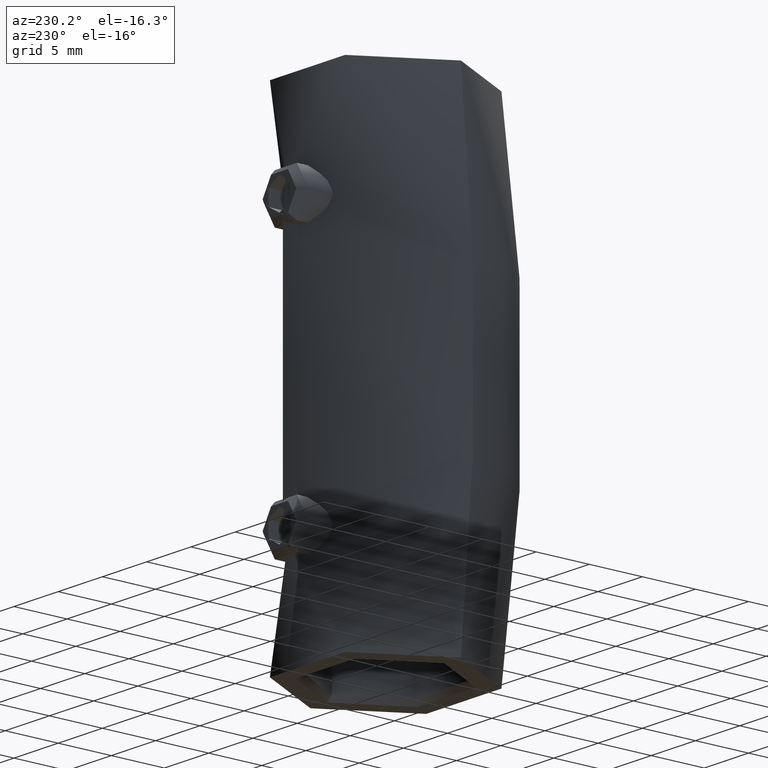
[diagram: clean part render]
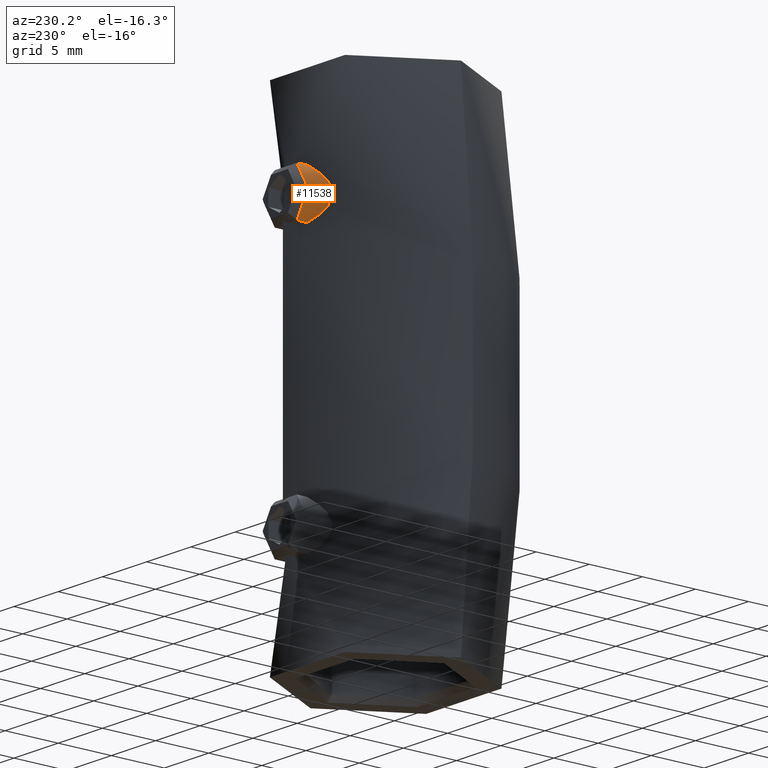
[diagram: same view with one face highlighted and labeled with its STEP entity id]
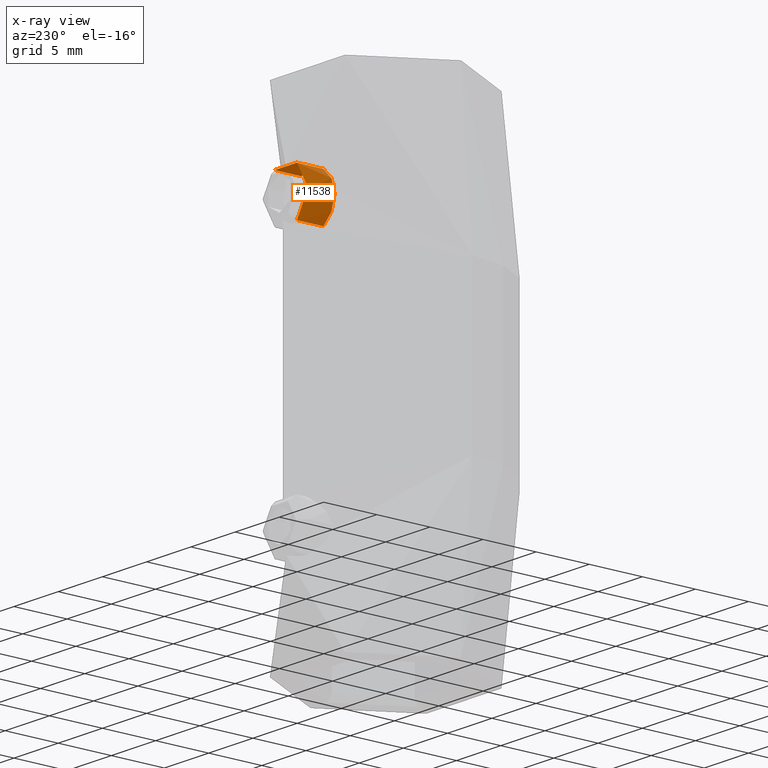
[diagram: x-ray of the same camera — body ghosted, the highlighted face saturated]
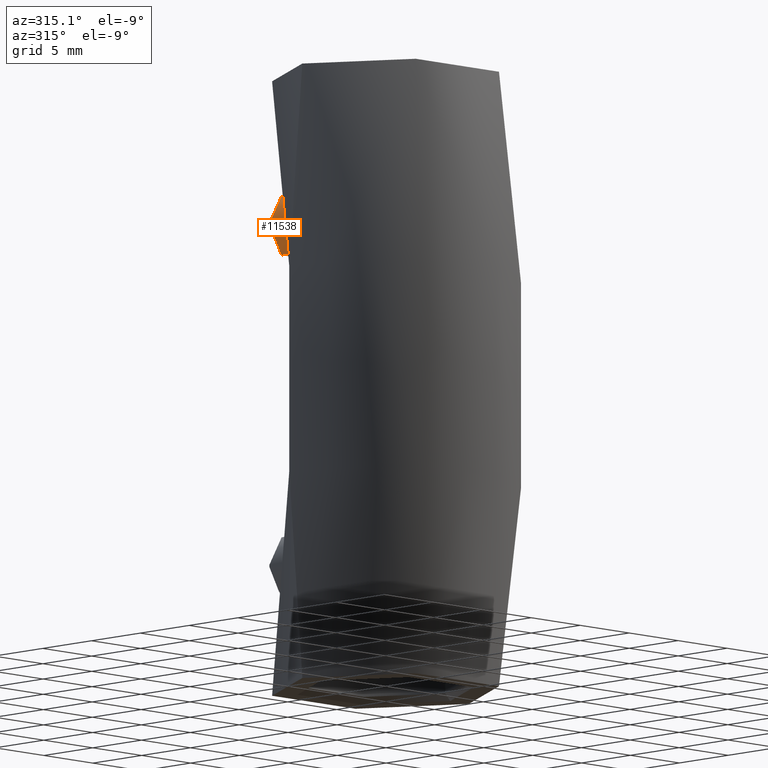
[diagram: same view with one face highlighted and labeled with its STEP entity id]
A machine part, auxiliary view. The second image highlights one B-rep face of the part: STEP entity #11538.
The next image is the same camera in x-ray: the body ghosted, the highlighted face saturated — about 0% of this face is hidden behind the body in this view.
A second angle (auxiliary view) of the same face is appended — the face is thin or edge-on in the first view.
In plain terms, the highlighted cylindrical surface (edge-blend (fillet) strip) has radius 2.5 mm, axis along (0, -1, -0).
Its self-contained STEP definition (entity closure, byte-faithful):
#154 = EDGE_CURVE ( 'NONE', #6336, #5363, #12808, .T. ) ;
#368 = VERTEX_POINT ( 'NONE', #829 ) ;
#829 = CARTESIAN_POINT ( 'NONE',  ( 0.8999999999999896971, -6.018531076210112041E-33, 2.500000000000000000 ) ) ;
#997 = CYLINDRICAL_SURFACE ( 'NONE', #7680, 2.500000000000000000 ) ;
#1086 = VERTEX_POINT ( 'NONE', #11275 ) ;
#1437 = DIRECTION ( 'NONE',  ( -4.336808689942017736E-17, -1.000000000000000000, 0.000000000000000000 ) ) ;
#1816 = FACE_OUTER_BOUND ( 'NONE', #7331, .T. ) ;
#2161 = DIRECTION ( 'NONE',  ( -1.000000000000000000, 5.043320290719269690E-17, -0.000000000000000000 ) ) ;
#2264 = CARTESIAN_POINT ( 'NONE',  ( 4.000000000000000000, 0.000000000000000000, 0.000000000000000000 ) ) ;
#2515 = VECTOR ( 'NONE', #8724, 1000.000000000000000 ) ;
#2549 = CARTESIAN_POINT ( 'NONE',  ( 0.8999999999999896971, -4.538988261647290212E-17, 0.000000000000000000 ) ) ;
#2888 = CARTESIAN_POINT ( 'NONE',  ( 0.8999999999999896971, 3.061616997868383141E-16, -2.500000000000000000 ) ) ;
#3533 = ORIENTED_EDGE ( 'NONE', *, *, #11428, .F. ) ;
#3629 = CARTESIAN_POINT ( 'NONE',  ( 3.399999999999998135, 3.061616997868383141E-16, -2.500000000000000000 ) ) ;
#4776 = DIRECTION ( 'NONE',  ( -4.336808689942017736E-17, -1.000000000000000000, 0.000000000000000000 ) ) ;
#4869 = CARTESIAN_POINT ( 'NONE',  ( 4.000000000000000000, 3.061616997868383141E-16, -2.500000000000000000 ) ) ;
#5363 = VERTEX_POINT ( 'NONE', #2888 ) ;
#5461 = CARTESIAN_POINT ( 'NONE',  ( 4.000000000000000000, 0.000000000000000000, 2.500000000000000000 ) ) ;
#5581 = CIRCLE ( 'NONE', #14180, 2.500000000000000000 ) ;
#6096 = CIRCLE ( 'NONE', #6122, 2.500000000000000000 ) ;
#6122 = AXIS2_PLACEMENT_3D ( 'NONE', #14451, #14396, #6720 ) ;
#6336 = VERTEX_POINT ( 'NONE', #3629 ) ;
#6720 = DIRECTION ( 'NONE',  ( 0.000000000000000000, 0.000000000000000000, -1.000000000000000000 ) ) ;
#7275 = DIRECTION ( 'NONE',  ( 0.000000000000000000, 0.000000000000000000, 1.000000000000000000 ) ) ;
#7331 = EDGE_LOOP ( 'NONE', ( #11552, #7954, #3533, #10014, #11248 ) ) ;
#7356 = EDGE_CURVE ( 'NONE', #1086, #6336, #6096, .T. ) ;
#7377 = EDGE_CURVE ( 'NONE', #1086, #368, #7704, .T. ) ;
#7675 = DIRECTION ( 'NONE',  ( -1.000000000000000000, 5.043320290719269690E-17, -0.000000000000000000 ) ) ;
#7680 = AXIS2_PLACEMENT_3D ( 'NONE', #2264, #8628, #7275 ) ;
#7704 = LINE ( 'NONE', #5461, #8900 ) ;
#7954 = ORIENTED_EDGE ( 'NONE', *, *, #154, .T. ) ;
#8628 = DIRECTION ( 'NONE',  ( -1.000000000000000000, -0.000000000000000000, -0.000000000000000000 ) ) ;
#8724 = DIRECTION ( 'NONE',  ( -1.000000000000000000, -0.000000000000000000, -0.000000000000000000 ) ) ;
#8797 = CARTESIAN_POINT ( 'NONE',  ( 0.8999999999999898082, 2.500000000000000000, 0.000000000000000000 ) ) ;
#8900 = VECTOR ( 'NONE', #13094, 1000.000000000000000 ) ;
#9770 = CARTESIAN_POINT ( 'NONE',  ( 0.8999999999999896971, -4.538988261647290212E-17, 0.000000000000000000 ) ) ;
#10014 = ORIENTED_EDGE ( 'NONE', *, *, #13179, .F. ) ;
#11248 = ORIENTED_EDGE ( 'NONE', *, *, #7377, .F. ) ;
#11265 = CIRCLE ( 'NONE', #12885, 2.500000000000000000 ) ;
#11275 = CARTESIAN_POINT ( 'NONE',  ( 3.399999999999998135, 0.000000000000000000, 2.500000000000000000 ) ) ;
#11428 = EDGE_CURVE ( 'NONE', #15820, #5363, #11265, .T. ) ;
#11538 = ADVANCED_FACE ( 'NONE', ( #1816 ), #997, .T. ) ;
#11552 = ORIENTED_EDGE ( 'NONE', *, *, #7356, .T. ) ;
#12808 = LINE ( 'NONE', #4869, #2515 ) ;
#12885 = AXIS2_PLACEMENT_3D ( 'NONE', #9770, #2161, #4776 ) ;
#13094 = DIRECTION ( 'NONE',  ( -1.000000000000000000, -0.000000000000000000, -0.000000000000000000 ) ) ;
#13179 = EDGE_CURVE ( 'NONE', #368, #15820, #5581, .T. ) ;
#14180 = AXIS2_PLACEMENT_3D ( 'NONE', #2549, #7675, #1437 ) ;
#14396 = DIRECTION ( 'NONE',  ( -1.000000000000000000, 0.000000000000000000, 0.000000000000000000 ) ) ;
#14451 = CARTESIAN_POINT ( 'NONE',  ( 3.399999999999998135, 0.000000000000000000, 0.000000000000000000 ) ) ;
#15820 = VERTEX_POINT ( 'NONE', #8797 ) ;